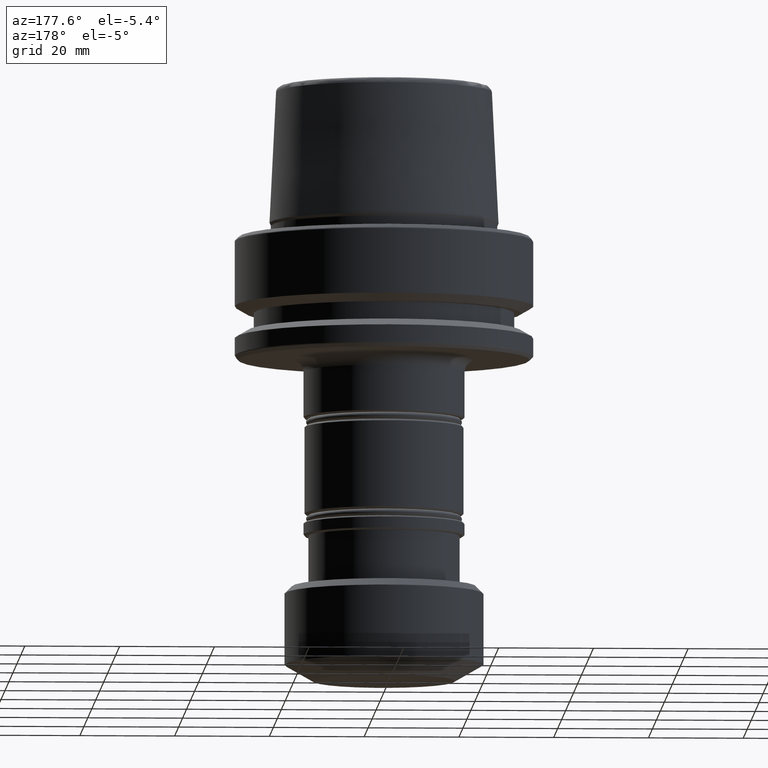
[diagram: clean part render]
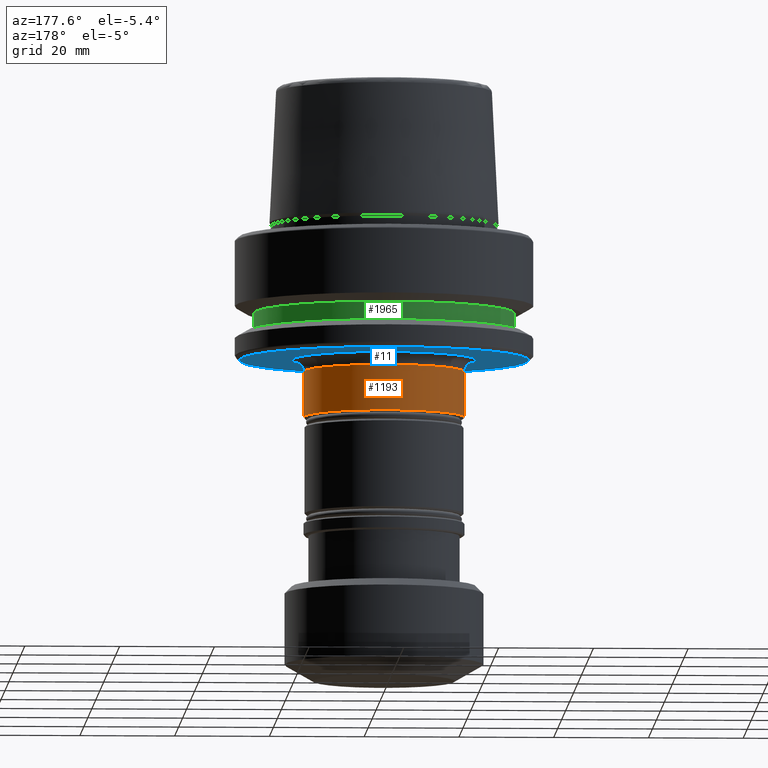
[diagram: same view with three faces highlighted in distinct colors, each labeled with its STEP entity id]
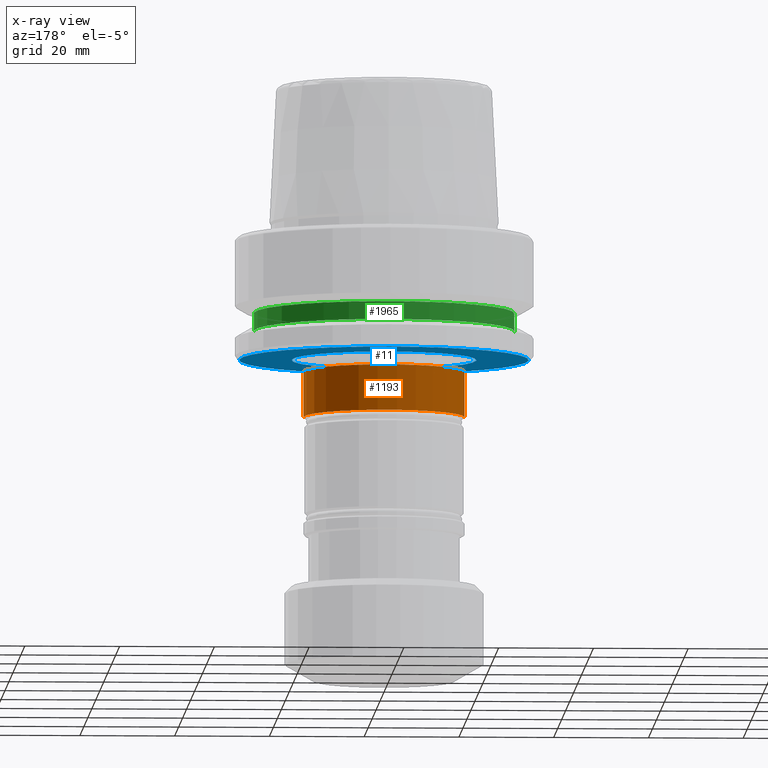
[diagram: x-ray of the same camera — body ghosted, the three highlighted faces saturated]
A machine part, auxiliary view with three faces highlighted in distinct colors.
The next image is the same camera in x-ray (body ghosted, the three faces saturated) — at least one of them is partly hidden behind the body in this view.
Their STEP definitions:

[orange] entity #1193 — the highlighted cylindrical surface (partial cylindrical patch) has radius 17 mm, axis along (-0, -0, 1).
#111 = CARTESIAN_POINT ( 'NONE',  ( -17.00000000000034800, 2.081899558550543300E-015, -38.09999999999960400 ) ) ;
#122 = DIRECTION ( 'NONE',  ( 1.000000000000000000, 0.0000000000000000000, 0.0000000000000000000 ) ) ;
#142 = VERTEX_POINT ( 'NONE', #1850 ) ;
#200 = EDGE_CURVE ( 'NONE', #1826, #273, #694, .T. ) ;
#253 = DIRECTION ( 'NONE',  ( -0.0000000000000000000, -0.0000000000000000000, 1.000000000000000000 ) ) ;
#273 = VERTEX_POINT ( 'NONE', #111 ) ;
#274 = EDGE_CURVE ( 'NONE', #1826, #1182, #1786, .T. ) ;
#419 = VECTOR ( 'NONE', #964, 1000.000000000000000 ) ;
#627 = DIRECTION ( 'NONE',  ( -0.0000000000000000000, -0.0000000000000000000, 1.000000000000000000 ) ) ;
#635 = FACE_OUTER_BOUND ( 'NONE', #1795, .T. ) ;
#646 = CARTESIAN_POINT ( 'NONE',  ( 17.00000000000034800, 0.0000000000000000000, -38.09999999999960400 ) ) ;
#676 = ORIENTED_EDGE ( 'NONE', *, *, #1046, .T. ) ;
#694 = CIRCLE ( 'NONE', #737, 17.00000000000034800 ) ;
#737 = AXIS2_PLACEMENT_3D ( 'NONE', #1878, #1082, #122 ) ;
#894 = LINE ( 'NONE', #1739, #419 ) ;
#935 = DIRECTION ( 'NONE',  ( 1.000000000000000000, 0.0000000000000000000, 0.0000000000000000000 ) ) ;
#956 = CYLINDRICAL_SURFACE ( 'NONE', #1321, 17.00000000000034800 ) ;
#964 = DIRECTION ( 'NONE',  ( -0.0000000000000000000, -0.0000000000000000000, 1.000000000000000000 ) ) ;
#1046 = EDGE_CURVE ( 'NONE', #273, #142, #894, .T. ) ;
#1082 = DIRECTION ( 'NONE',  ( -0.0000000000000000000, -0.0000000000000000000, 1.000000000000000000 ) ) ;
#1182 = VERTEX_POINT ( 'NONE', #1521 ) ;
#1193 = ADVANCED_FACE ( 'NONE', ( #635 ), #956, .T. ) ;
#1200 = CARTESIAN_POINT ( 'NONE',  ( 17.00000000000034800, 0.0000000000000000000, 51.37076253916607300 ) ) ;
#1295 = ORIENTED_EDGE ( 'NONE', *, *, #274, .F. ) ;
#1321 = AXIS2_PLACEMENT_3D ( 'NONE', #1553, #1861, #935 ) ;
#1357 = CIRCLE ( 'NONE', #1374, 17.00000000000034800 ) ;
#1374 = AXIS2_PLACEMENT_3D ( 'NONE', #1567, #627, #1727 ) ;
#1405 = ORIENTED_EDGE ( 'NONE', *, *, #200, .T. ) ;
#1521 = CARTESIAN_POINT ( 'NONE',  ( 17.00000000000034800, 0.0000000000000000000, -28.49999999999933200 ) ) ;
#1553 = CARTESIAN_POINT ( 'NONE',  ( 0.0000000000000000000, 0.0000000000000000000, 51.37076253916607300 ) ) ;
#1567 = CARTESIAN_POINT ( 'NONE',  ( 0.0000000000000000000, 0.0000000000000000000, -28.49999999999933200 ) ) ;
#1727 = DIRECTION ( 'NONE',  ( 1.000000000000000000, 0.0000000000000000000, 0.0000000000000000000 ) ) ;
#1739 = CARTESIAN_POINT ( 'NONE',  ( -17.00000000000034800, 2.081899558550543300E-015, 51.37076253916607300 ) ) ;
#1740 = VECTOR ( 'NONE', #253, 1000.000000000000000 ) ;
#1783 = EDGE_CURVE ( 'NONE', #1182, #142, #1357, .T. ) ;
#1786 = LINE ( 'NONE', #1200, #1740 ) ;
#1795 = EDGE_LOOP ( 'NONE', ( #1405, #676, #1919, #1295 ) ) ;
#1826 = VERTEX_POINT ( 'NONE', #646 ) ;
#1850 = CARTESIAN_POINT ( 'NONE',  ( -17.00000000000034800, 2.081899558550543300E-015, -28.49999999999933200 ) ) ;
#1861 = DIRECTION ( 'NONE',  ( -0.0000000000000000000, -0.0000000000000000000, 1.000000000000000000 ) ) ;
#1878 = CARTESIAN_POINT ( 'NONE',  ( 0.0000000000000000000, 0.0000000000000000000, -38.09999999999960400 ) ) ;
#1919 = ORIENTED_EDGE ( 'NONE', *, *, #1783, .F. ) ;

[blue] entity #11 — the highlighted planar face has unit normal (0, -0, 1).
#11 = ADVANCED_FACE ( 'NONE', ( #955, #541 ), #158, .F. ) ;
#124 = CIRCLE ( 'NONE', #2012, 30.53431457505076800 ) ;
#134 = CIRCLE ( 'NONE', #1764, 30.53431457505076800 ) ;
#158 = PLANE ( 'NONE',  #1184 ) ;
#220 = CARTESIAN_POINT ( 'NONE',  ( 0.0000000000000000000, 0.0000000000000000000, -26.00000000000001100 ) ) ;
#372 = ORIENTED_EDGE ( 'NONE', *, *, #572, .F. ) ;
#387 = DIRECTION ( 'NONE',  ( 1.000000000000000000, 0.0000000000000000000, 0.0000000000000000000 ) ) ;
#413 = CIRCLE ( 'NONE', #1474, 19.49999999999929700 ) ;
#471 = EDGE_CURVE ( 'NONE', #2018, #1634, #1887, .T. ) ;
#498 = DIRECTION ( 'NONE',  ( 1.000000000000000000, 0.0000000000000000000, 0.0000000000000000000 ) ) ;
#541 = FACE_BOUND ( 'NONE', #675, .T. ) ;
#558 = EDGE_LOOP ( 'NONE', ( #1292, #680 ) ) ;
#572 = EDGE_CURVE ( 'NONE', #1634, #2018, #413, .T. ) ;
#633 = AXIS2_PLACEMENT_3D ( 'NONE', #1913, #1290, #1607 ) ;
#654 = DIRECTION ( 'NONE',  ( -0.0000000000000000000, -0.0000000000000000000, 1.000000000000000000 ) ) ;
#675 = EDGE_LOOP ( 'NONE', ( #1491, #372 ) ) ;
#680 = ORIENTED_EDGE ( 'NONE', *, *, #1554, .F. ) ;
#796 = CARTESIAN_POINT ( 'NONE',  ( 0.0000000000000000000, 0.0000000000000000000, -26.00000000000001100 ) ) ;
#955 = FACE_OUTER_BOUND ( 'NONE', #558, .T. ) ;
#1051 = CARTESIAN_POINT ( 'NONE',  ( -19.49999999999929700, 2.388061258337252600E-015, -26.00000000000021000 ) ) ;
#1166 = CARTESIAN_POINT ( 'NONE',  ( 19.49999999999929700, 0.0000000000000000000, -26.00000000000021000 ) ) ;
#1184 = AXIS2_PLACEMENT_3D ( 'NONE', #1868, #1841, #2043 ) ;
#1276 = CARTESIAN_POINT ( 'NONE',  ( 30.53431457505076800, 0.0000000000000000000, -26.00000000000001100 ) ) ;
#1290 = DIRECTION ( 'NONE',  ( 0.0000000000000000000, 0.0000000000000000000, -1.000000000000000000 ) ) ;
#1292 = ORIENTED_EDGE ( 'NONE', *, *, #1990, .F. ) ;
#1318 = DIRECTION ( 'NONE',  ( -0.0000000000000000000, -0.0000000000000000000, 1.000000000000000000 ) ) ;
#1415 = DIRECTION ( 'NONE',  ( 0.0000000000000000000, 0.0000000000000000000, -1.000000000000000000 ) ) ;
#1474 = AXIS2_PLACEMENT_3D ( 'NONE', #796, #1415, #498 ) ;
#1491 = ORIENTED_EDGE ( 'NONE', *, *, #471, .F. ) ;
#1554 = EDGE_CURVE ( 'NONE', #1827, #1830, #124, .T. ) ;
#1599 = CARTESIAN_POINT ( 'NONE',  ( 0.0000000000000000000, 0.0000000000000000000, -26.00000000000001100 ) ) ;
#1607 = DIRECTION ( 'NONE',  ( 1.000000000000000000, 0.0000000000000000000, 0.0000000000000000000 ) ) ;
#1634 = VERTEX_POINT ( 'NONE', #1051 ) ;
#1741 = CARTESIAN_POINT ( 'NONE',  ( -30.53431457505076800, 3.756694181974139400E-015, -26.00000000000001100 ) ) ;
#1747 = DIRECTION ( 'NONE',  ( 1.000000000000000000, 0.0000000000000000000, 0.0000000000000000000 ) ) ;
#1764 = AXIS2_PLACEMENT_3D ( 'NONE', #220, #1318, #387 ) ;
#1827 = VERTEX_POINT ( 'NONE', #1741 ) ;
#1830 = VERTEX_POINT ( 'NONE', #1276 ) ;
#1841 = DIRECTION ( 'NONE',  ( 0.0000000000000000000, -0.0000000000000000000, 1.000000000000000000 ) ) ;
#1868 = CARTESIAN_POINT ( 'NONE',  ( 0.0000000000000000000, 30.53431457505076800, -26.00000000000001100 ) ) ;
#1887 = CIRCLE ( 'NONE', #633, 19.49999999999929700 ) ;
#1913 = CARTESIAN_POINT ( 'NONE',  ( 0.0000000000000000000, 0.0000000000000000000, -26.00000000000001100 ) ) ;
#1990 = EDGE_CURVE ( 'NONE', #1830, #1827, #134, .T. ) ;
#2012 = AXIS2_PLACEMENT_3D ( 'NONE', #1599, #654, #1747 ) ;
#2018 = VERTEX_POINT ( 'NONE', #1166 ) ;
#2043 = DIRECTION ( 'NONE',  ( 1.000000000000000000, 0.0000000000000000000, 0.0000000000000000000 ) ) ;

[green] entity #1965 — the highlighted cylindrical surface (partial cylindrical patch) has radius 27.5 mm, axis along (-0, -0, 1).
#73 = CARTESIAN_POINT ( 'NONE',  ( 27.49999999999999600, 0.0000000000000000000, 78.96908074195309300 ) ) ;
#84 = CIRCLE ( 'NONE', #1253, 27.49999999999999600 ) ;
#146 = LINE ( 'NONE', #1072, #1777 ) ;
#248 = AXIS2_PLACEMENT_3D ( 'NONE', #1650, #712, #1796 ) ;
#345 = ORIENTED_EDGE ( 'NONE', *, *, #2007, .F. ) ;
#375 = ORIENTED_EDGE ( 'NONE', *, *, #1721, .T. ) ;
#450 = CARTESIAN_POINT ( 'NONE',  ( 27.49999999999999600, 0.0000000000000000000, -16.10000000000001600 ) ) ;
#468 = DIRECTION ( 'NONE',  ( -0.0000000000000000000, -0.0000000000000000000, 1.000000000000000000 ) ) ;
#609 = CYLINDRICAL_SURFACE ( 'NONE', #1548, 27.49999999999999600 ) ;
#671 = FACE_OUTER_BOUND ( 'NONE', #2010, .T. ) ;
#712 = DIRECTION ( 'NONE',  ( -0.0000000000000000000, -0.0000000000000000000, 1.000000000000000000 ) ) ;
#767 = CARTESIAN_POINT ( 'NONE',  ( 27.49999999999999600, 0.0000000000000000000, -19.90000000000001600 ) ) ;
#828 = EDGE_CURVE ( 'NONE', #1666, #1679, #862, .T. ) ;
#862 = LINE ( 'NONE', #73, #1637 ) ;
#924 = VERTEX_POINT ( 'NONE', #1657 ) ;
#984 = EDGE_CURVE ( 'NONE', #1666, #924, #84, .T. ) ;
#992 = DIRECTION ( 'NONE',  ( -0.0000000000000000000, -0.0000000000000000000, 1.000000000000000000 ) ) ;
#1072 = CARTESIAN_POINT ( 'NONE',  ( -27.49999999999999600, 3.367778697655220900E-015, 78.96908074195309300 ) ) ;
#1164 = ORIENTED_EDGE ( 'NONE', *, *, #828, .F. ) ;
#1174 = DIRECTION ( 'NONE',  ( 1.000000000000000000, 0.0000000000000000000, 0.0000000000000000000 ) ) ;
#1253 = AXIS2_PLACEMENT_3D ( 'NONE', #1629, #1885, #1174 ) ;
#1297 = CARTESIAN_POINT ( 'NONE',  ( 0.0000000000000000000, 0.0000000000000000000, 78.96908074195309300 ) ) ;
#1336 = DIRECTION ( 'NONE',  ( -0.0000000000000000000, -0.0000000000000000000, 1.000000000000000000 ) ) ;
#1548 = AXIS2_PLACEMENT_3D ( 'NONE', #1297, #992, #1623 ) ;
#1623 = DIRECTION ( 'NONE',  ( 1.000000000000000000, 0.0000000000000000000, 0.0000000000000000000 ) ) ;
#1629 = CARTESIAN_POINT ( 'NONE',  ( 0.0000000000000000000, 0.0000000000000000000, -19.90000000000001600 ) ) ;
#1637 = VECTOR ( 'NONE', #1336, 1000.000000000000000 ) ;
#1650 = CARTESIAN_POINT ( 'NONE',  ( 0.0000000000000000000, 0.0000000000000000000, -16.10000000000001600 ) ) ;
#1657 = CARTESIAN_POINT ( 'NONE',  ( -27.49999999999999600, 3.367778697655220900E-015, -19.90000000000001600 ) ) ;
#1665 = VERTEX_POINT ( 'NONE', #1697 ) ;
#1666 = VERTEX_POINT ( 'NONE', #767 ) ;
#1679 = VERTEX_POINT ( 'NONE', #450 ) ;
#1697 = CARTESIAN_POINT ( 'NONE',  ( -27.49999999999999600, 3.367778697655220900E-015, -16.10000000000001600 ) ) ;
#1721 = EDGE_CURVE ( 'NONE', #924, #1665, #146, .T. ) ;
#1777 = VECTOR ( 'NONE', #468, 1000.000000000000000 ) ;
#1796 = DIRECTION ( 'NONE',  ( 1.000000000000000000, 0.0000000000000000000, 0.0000000000000000000 ) ) ;
#1858 = CIRCLE ( 'NONE', #248, 27.49999999999999600 ) ;
#1885 = DIRECTION ( 'NONE',  ( -0.0000000000000000000, -0.0000000000000000000, 1.000000000000000000 ) ) ;
#1965 = ADVANCED_FACE ( 'NONE', ( #671 ), #609, .T. ) ;
#1980 = ORIENTED_EDGE ( 'NONE', *, *, #984, .T. ) ;
#2007 = EDGE_CURVE ( 'NONE', #1679, #1665, #1858, .T. ) ;
#2010 = EDGE_LOOP ( 'NONE', ( #1980, #375, #345, #1164 ) ) ;